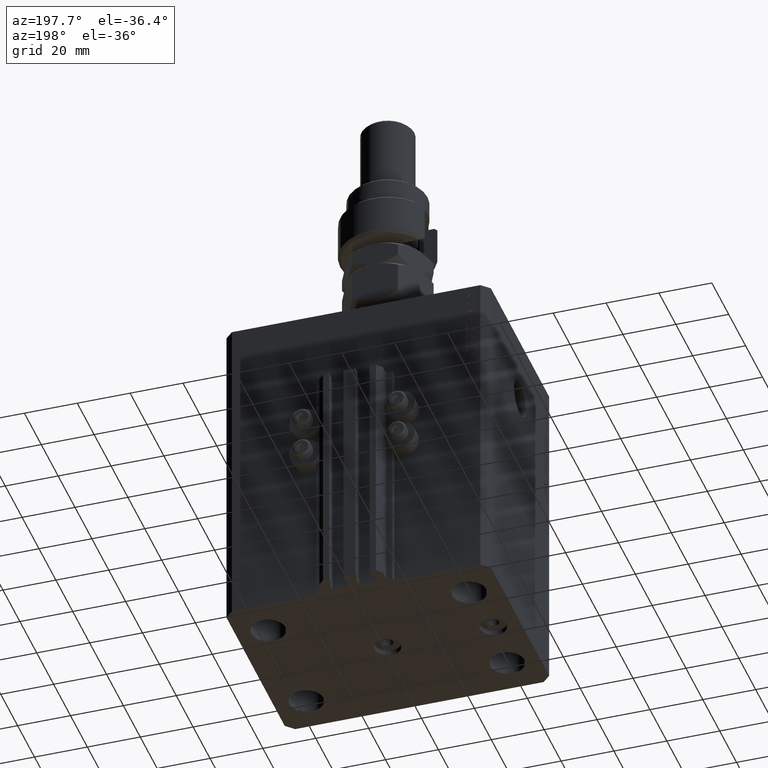
[diagram: clean part render]
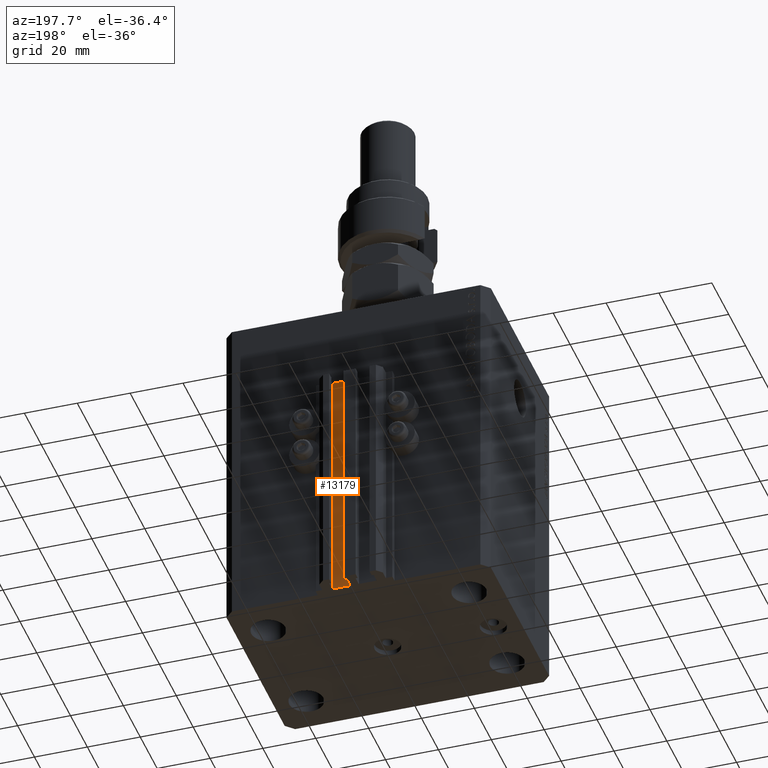
[diagram: same view with one face highlighted and labeled with its STEP entity id]
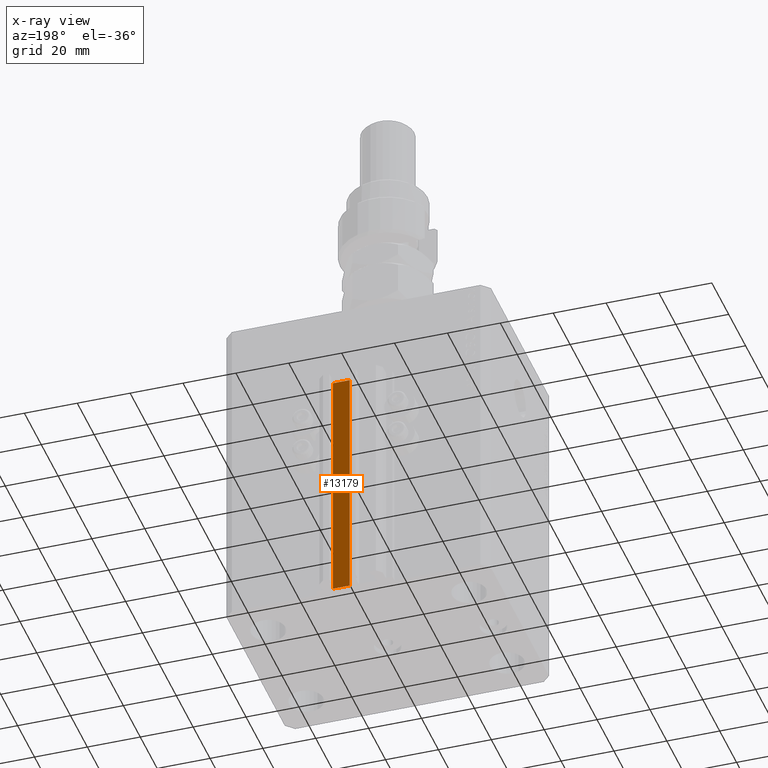
[diagram: x-ray of the same camera — body ghosted, the highlighted face saturated]
A machine part, auxiliary view. The second image highlights one B-rep face of the part: STEP entity #13179.
The next image is the same camera in x-ray: the body ghosted, the highlighted face saturated — about 0% of this face is hidden behind the body in this view.
In plain terms, the highlighted planar face has unit normal (-0, 1, 0).
Its self-contained STEP definition (entity closure, byte-faithful):
#687 = EDGE_CURVE ( 'NONE', #3751, #46166, #1294, .T. ) ;
#838 = FACE_OUTER_BOUND ( 'NONE', #24074, .T. ) ;
#1294 = LINE ( 'NONE', #39902, #25862 ) ;
#2391 = LINE ( 'NONE', #48089, #4705 ) ;
#3751 = VERTEX_POINT ( 'NONE', #43442 ) ;
#4705 = VECTOR ( 'NONE', #32619, 1000.000000000000000 ) ;
#5474 = LINE ( 'NONE', #40787, #19410 ) ;
#6462 = CARTESIAN_POINT ( 'NONE',  ( 8.199999999999999289, 39.50000000000000711, -125.0000000000000000 ) ) ;
#7169 = EDGE_CURVE ( 'NONE', #46766, #16241, #20905, .T. ) ;
#9245 = CARTESIAN_POINT ( 'NONE',  ( 8.199999999999999289, 39.50000000000000711, -125.0000000000000000 ) ) ;
#12190 = DIRECTION ( 'NONE',  ( -1.000000000000000000, -1.084202172485504828E-15, 0.000000000000000000 ) ) ;
#12741 = DIRECTION ( 'NONE',  ( -1.000000000000000000, -1.084202172485504828E-15, 0.000000000000000000 ) ) ;
#13179 = ADVANCED_FACE ( 'NONE', ( #838 ), #16796, .T. ) ;
#13588 = DIRECTION ( 'NONE',  ( 0.000000000000000000, 0.000000000000000000, 1.000000000000000000 ) ) ;
#14602 = VECTOR ( 'NONE', #16082, 1000.000000000000000 ) ;
#15941 = AXIS2_PLACEMENT_3D ( 'NONE', #31806, #43481, #12741 ) ;
#16082 = DIRECTION ( 'NONE',  ( -1.000000000000000000, -1.084202172485504828E-15, 0.000000000000000000 ) ) ;
#16241 = VERTEX_POINT ( 'NONE', #46593 ) ;
#16796 = PLANE ( 'NONE',  #15941 ) ;
#19410 = VECTOR ( 'NONE', #13588, 1000.000000000000000 ) ;
#20905 = LINE ( 'NONE', #9245, #14602 ) ;
#24054 = ORIENTED_EDGE ( 'NONE', *, *, #687, .F. ) ;
#24074 = EDGE_LOOP ( 'NONE', ( #24054, #45053, #38466, #32462 ) ) ;
#25862 = VECTOR ( 'NONE', #12190, 1000.000000000000000 ) ;
#31806 = CARTESIAN_POINT ( 'NONE',  ( 8.199999999999999289, 39.50000000000000711, -125.0000000000000000 ) ) ;
#32462 = ORIENTED_EDGE ( 'NONE', *, *, #34937, .T. ) ;
#32619 = DIRECTION ( 'NONE',  ( 0.000000000000000000, 0.000000000000000000, 1.000000000000000000 ) ) ;
#34937 = EDGE_CURVE ( 'NONE', #16241, #46166, #2391, .T. ) ;
#35073 = CARTESIAN_POINT ( 'NONE',  ( 1.800000000000000933, 39.50000000000000000, -33.00000000000000000 ) ) ;
#38466 = ORIENTED_EDGE ( 'NONE', *, *, #7169, .T. ) ;
#39902 = CARTESIAN_POINT ( 'NONE',  ( 8.199999999999999289, 39.50000000000000711, -33.00000000000000000 ) ) ;
#40787 = CARTESIAN_POINT ( 'NONE',  ( 8.199999999999999289, 39.50000000000000711, -125.0000000000000000 ) ) ;
#42081 = EDGE_CURVE ( 'NONE', #46766, #3751, #5474, .T. ) ;
#43442 = CARTESIAN_POINT ( 'NONE',  ( 8.199999999999999289, 39.50000000000000711, -33.00000000000000000 ) ) ;
#43481 = DIRECTION ( 'NONE',  ( -1.084202172485504828E-15, 1.000000000000000000, 0.000000000000000000 ) ) ;
#45053 = ORIENTED_EDGE ( 'NONE', *, *, #42081, .F. ) ;
#46166 = VERTEX_POINT ( 'NONE', #35073 ) ;
#46593 = CARTESIAN_POINT ( 'NONE',  ( 1.800000000000000933, 39.50000000000000000, -125.0000000000000000 ) ) ;
#46766 = VERTEX_POINT ( 'NONE', #6462 ) ;
#48089 = CARTESIAN_POINT ( 'NONE',  ( 1.800000000000000933, 39.50000000000000000, -125.0000000000000000 ) ) ;